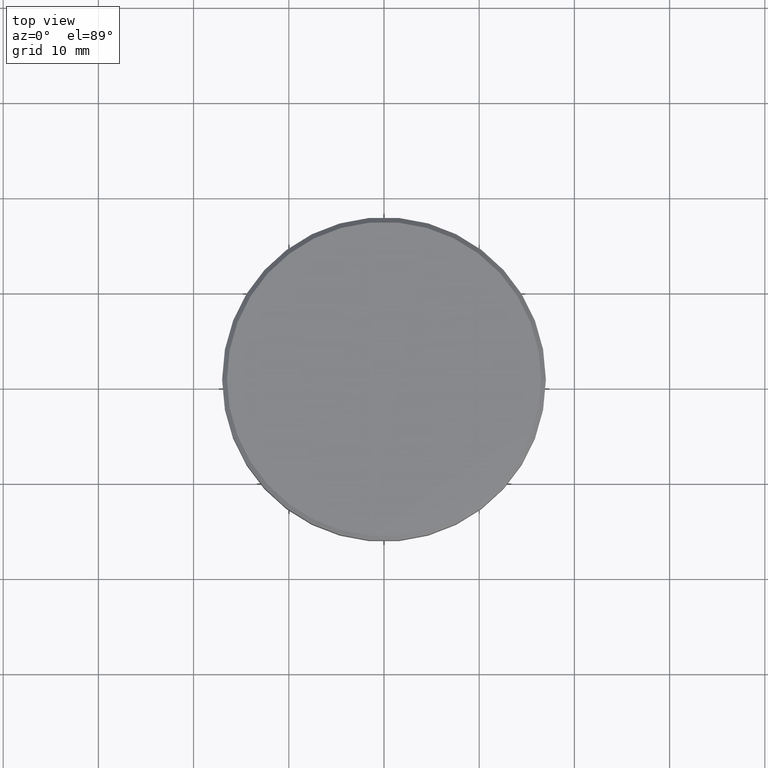
[diagram: clean part render]
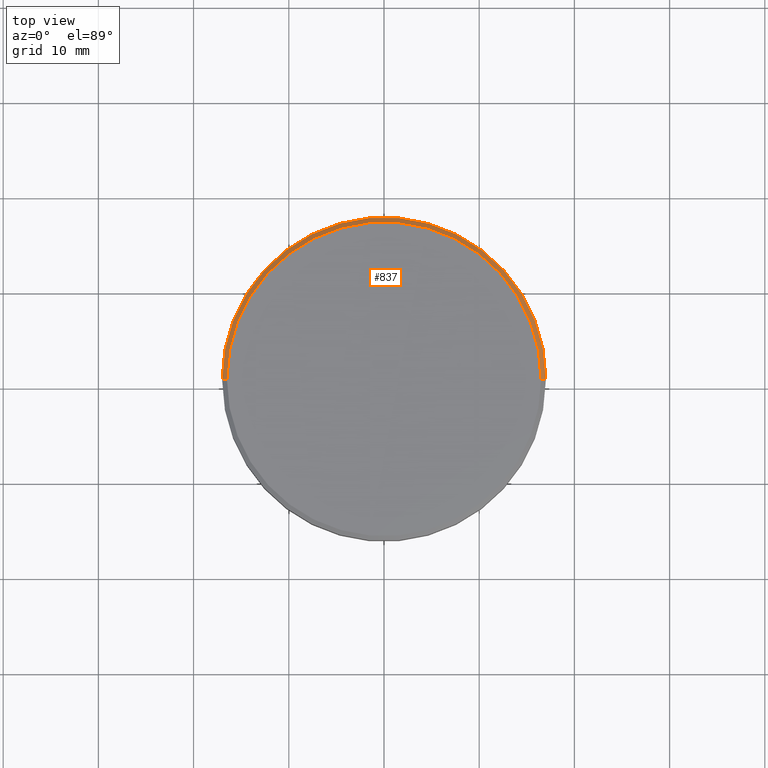
[diagram: same view with one face highlighted and labeled with its STEP entity id]
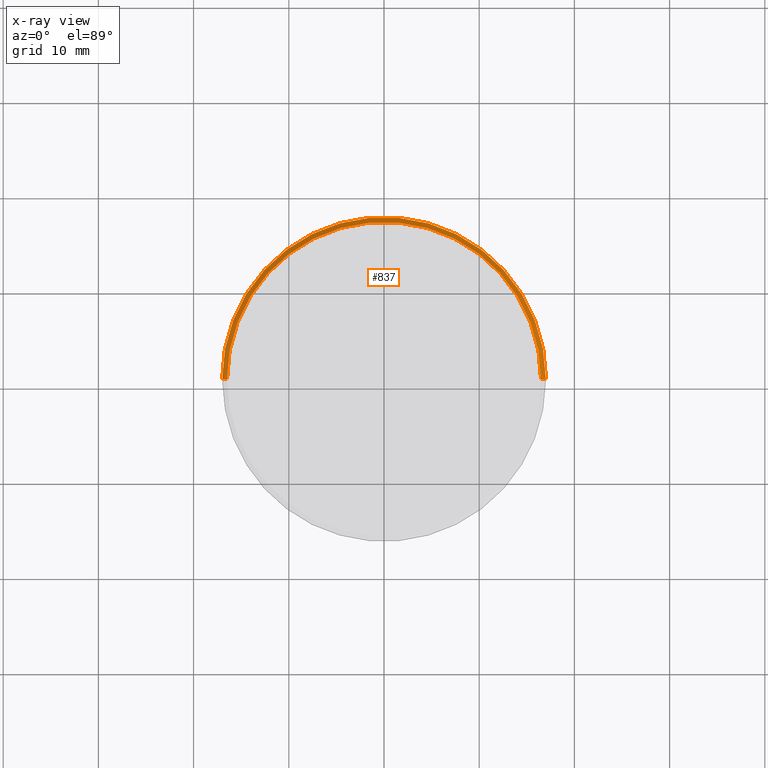
[diagram: x-ray of the same camera — body ghosted, the highlighted face saturated]
A machine part, top view. The second image highlights one B-rep face of the part: STEP entity #837.
The next image is the same camera in x-ray: the body ghosted, the highlighted face saturated — about 0% of this face is hidden behind the body in this view.
In plain terms, the highlighted conical surface has half-angle 45 deg.
Its self-contained STEP definition (entity closure, byte-faithful):
#2 = DIRECTION ( 'NONE',  ( 1.000000000000000000, 0.000000000000000000, 0.000000000000000000 ) ) ;
#94 = EDGE_CURVE ( 'NONE', #1023, #498, #1138, .T. ) ;
#121 = DIRECTION ( 'NONE',  ( 0.7071067811865524577, 8.659560562354994488E-17, -0.7071067811865426878 ) ) ;
#147 = CARTESIAN_POINT ( 'NONE',  ( 17.00000000000000000, 0.000000000000000000, -0.4999999999999935052 ) ) ;
#151 = CARTESIAN_POINT ( 'NONE',  ( -16.50000000000000000, 0.000000000000000000, 0.000000000000000000 ) ) ;
#164 = CARTESIAN_POINT ( 'NONE',  ( -17.00000000000000000, 2.081899558550500280E-15, -0.4999999999999935052 ) ) ;
#195 = ORIENTED_EDGE ( 'NONE', *, *, #353, .F. ) ;
#268 = CARTESIAN_POINT ( 'NONE',  ( 16.50000000000000000, 2.051283388571816887E-15, 0.000000000000000000 ) ) ;
#284 = CARTESIAN_POINT ( 'NONE',  ( 0.000000000000000000, 0.000000000000000000, 0.000000000000000000 ) ) ;
#307 = LINE ( 'NONE', #1120, #997 ) ;
#329 = CIRCLE ( 'NONE', #1014, 17.00000000000000000 ) ;
#353 = EDGE_CURVE ( 'NONE', #757, #564, #329, .T. ) ;
#491 = DIRECTION ( 'NONE',  ( 0.000000000000000000, 0.000000000000000000, -1.000000000000000000 ) ) ;
#498 = VERTEX_POINT ( 'NONE', #151 ) ;
#534 = CARTESIAN_POINT ( 'NONE',  ( -16.50000000000000000, 0.000000000000000000, 0.000000000000000000 ) ) ;
#564 = VERTEX_POINT ( 'NONE', #147 ) ;
#590 = CARTESIAN_POINT ( 'NONE',  ( 0.000000000000000000, 0.000000000000000000, -0.4999999999999935052 ) ) ;
#605 = DIRECTION ( 'NONE',  ( -0.000000000000000000, -0.000000000000000000, 1.000000000000000000 ) ) ;
#666 = ORIENTED_EDGE ( 'NONE', *, *, #800, .T. ) ;
#675 = AXIS2_PLACEMENT_3D ( 'NONE', #693, #605, #698 ) ;
#678 = VECTOR ( 'NONE', #907, 1000.000000000000000 ) ;
#682 = FACE_OUTER_BOUND ( 'NONE', #690, .T. ) ;
#690 = EDGE_LOOP ( 'NONE', ( #758, #666, #195, #1112 ) ) ;
#693 = CARTESIAN_POINT ( 'NONE',  ( 0.000000000000000000, 0.000000000000000000, 0.000000000000000000 ) ) ;
#698 = DIRECTION ( 'NONE',  ( 1.000000000000000000, 0.000000000000000000, 0.000000000000000000 ) ) ;
#757 = VERTEX_POINT ( 'NONE', #164 ) ;
#758 = ORIENTED_EDGE ( 'NONE', *, *, #94, .F. ) ;
#773 = EDGE_CURVE ( 'NONE', #498, #757, #1099, .T. ) ;
#791 = CONICAL_SURFACE ( 'NONE', #1089, 16.50000000000000000, 0.7853981633974552734 ) ;
#800 = EDGE_CURVE ( 'NONE', #1023, #564, #307, .T. ) ;
#837 = ADVANCED_FACE ( 'NONE', ( #682 ), #791, .T. ) ;
#907 = DIRECTION ( 'NONE',  ( -0.7071067811865524577, 0.000000000000000000, -0.7071067811865426878 ) ) ;
#932 = DIRECTION ( 'NONE',  ( -1.000000000000000000, 0.000000000000000000, 0.000000000000000000 ) ) ;
#997 = VECTOR ( 'NONE', #121, 1000.000000000000000 ) ;
#1014 = AXIS2_PLACEMENT_3D ( 'NONE', #590, #491, #2 ) ;
#1023 = VERTEX_POINT ( 'NONE', #268 ) ;
#1089 = AXIS2_PLACEMENT_3D ( 'NONE', #284, #1111, #932 ) ;
#1099 = LINE ( 'NONE', #534, #678 ) ;
#1111 = DIRECTION ( 'NONE',  ( 0.000000000000000000, 0.000000000000000000, -1.000000000000000000 ) ) ;
#1112 = ORIENTED_EDGE ( 'NONE', *, *, #773, .F. ) ;
#1120 = CARTESIAN_POINT ( 'NONE',  ( 16.50000000000000000, 2.020667218593133100E-15, 0.000000000000000000 ) ) ;
#1138 = CIRCLE ( 'NONE', #675, 16.50000000000000000 ) ;